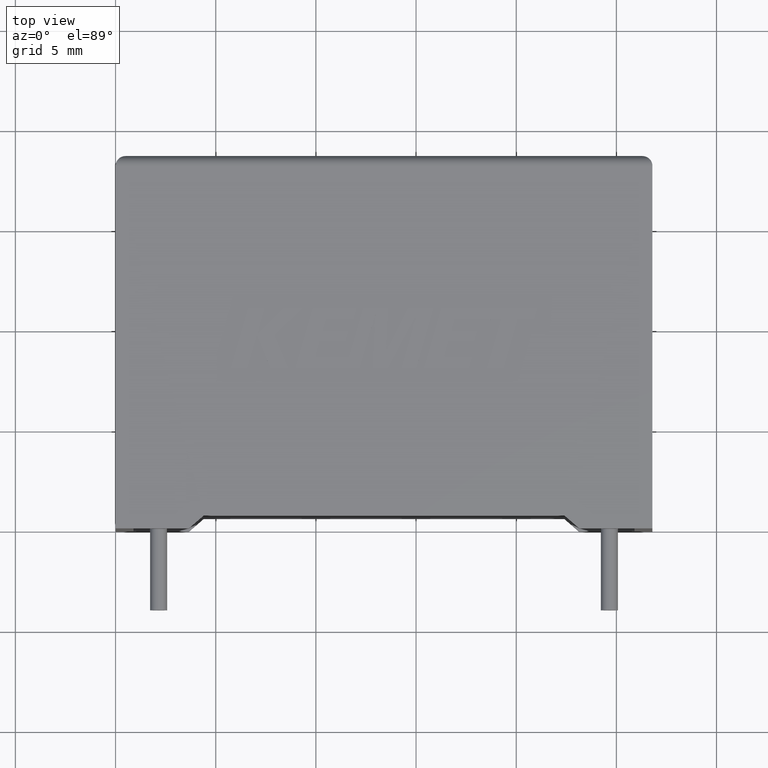
[diagram: clean part render]
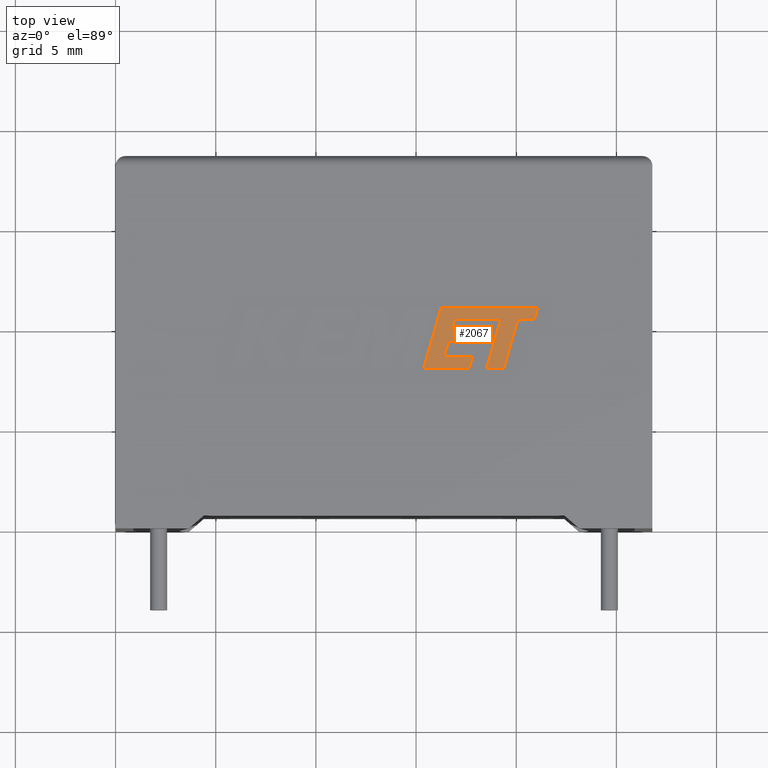
[diagram: same view with one face highlighted and labeled with its STEP entity id]
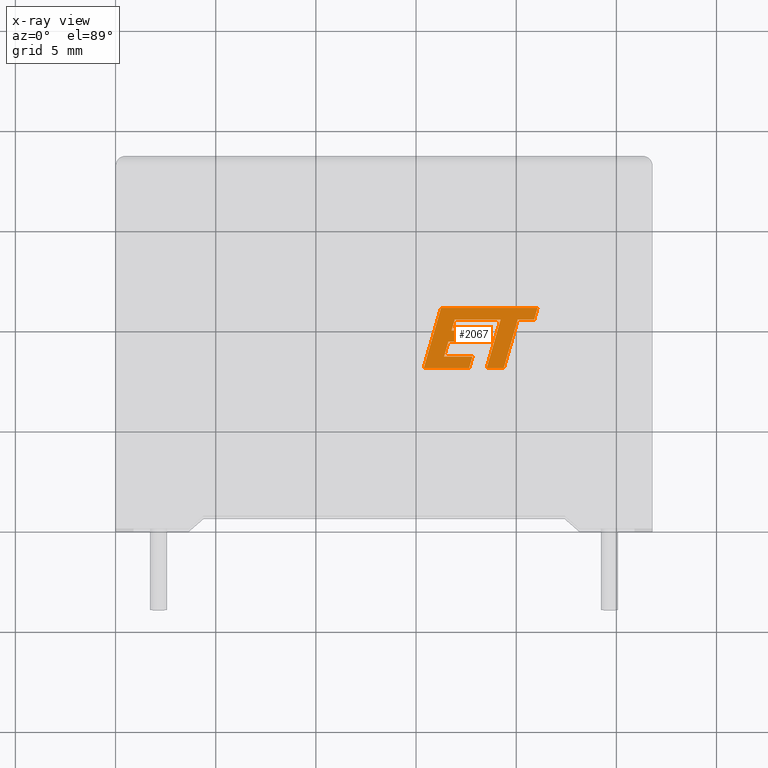
[diagram: x-ray of the same camera — body ghosted, the highlighted face saturated]
A machine part, top view. The second image highlights one B-rep face of the part: STEP entity #2067.
The next image is the same camera in x-ray: the body ghosted, the highlighted face saturated — about 0% of this face is hidden behind the body in this view.
In plain terms, the highlighted planar face has unit normal (0, 0, 1).
Its self-contained STEP definition (entity closure, byte-faithful):
#2 = DIRECTION ( 'NONE',  ( 0.9999999968487351953, -7.938847109813992875E-05, 0.000000000000000000 ) ) ;
#6 = DIRECTION ( 'NONE',  ( 0.9999960426590095430, -0.002813301676021314271, 0.000000000000000000 ) ) ;
#26 = VECTOR ( 'NONE', #2262, 1000.000000000000114 ) ;
#49 = EDGE_CURVE ( 'NONE', #2011, #2977, #1680, .T. ) ;
#57 = DIRECTION ( 'NONE',  ( 0.2793947940814923148, 0.9601763114346033579, 0.000000000000000000 ) ) ;
#75 = VECTOR ( 'NONE', #1067, 1000.000000000000114 ) ;
#94 = CARTESIAN_POINT ( 'NONE',  ( 21.06565576242807580, 11.00540514629475375, 10.20499999999999829 ) ) ;
#123 = LINE ( 'NONE', #2137, #2594 ) ;
#157 = ORIENTED_EDGE ( 'NONE', *, *, #631, .T. ) ;
#161 = CARTESIAN_POINT ( 'NONE',  ( 16.24677359728082493, 11.00540514629475375, 10.20499999999999829 ) ) ;
#168 = CARTESIAN_POINT ( 'NONE',  ( 15.38334338224329656, 8.003579999999905326, 10.20499999999999829 ) ) ;
#172 = ORIENTED_EDGE ( 'NONE', *, *, #639, .T. ) ;
#199 = ORIENTED_EDGE ( 'NONE', *, *, #337, .T. ) ;
#247 = CARTESIAN_POINT ( 'NONE',  ( 16.93410048055206119, 10.43392274208706993, 10.20499999999999829 ) ) ;
#248 = EDGE_CURVE ( 'NONE', #2909, #799, #1218, .T. ) ;
#256 = LINE ( 'NONE', #721, #2453 ) ;
#258 = VECTOR ( 'NONE', #2031, 1000.000000000000000 ) ;
#294 = CARTESIAN_POINT ( 'NONE',  ( 16.61331020747001475, 9.320749644009048041, 10.20499999999999829 ) ) ;
#337 = EDGE_CURVE ( 'NONE', #527, #2011, #1014, .T. ) ;
#361 = DIRECTION ( 'NONE',  ( 1.000000000000000000, 0.000000000000000000, 0.000000000000000000 ) ) ;
#374 = CARTESIAN_POINT ( 'NONE',  ( 15.38334338224329656, 8.003579999999905326, 10.20499999999999829 ) ) ;
#390 = VERTEX_POINT ( 'NONE', #659 ) ;
#425 = EDGE_CURVE ( 'NONE', #1996, #2735, #2563, .T. ) ;
#491 = LINE ( 'NONE', #2635, #1302 ) ;
#514 = CARTESIAN_POINT ( 'NONE',  ( 18.05985108378877158, 9.875583739499239400, 10.20499999999999829 ) ) ;
#515 = EDGE_CURVE ( 'NONE', #390, #2980, #2547, .T. ) ;
#527 = VERTEX_POINT ( 'NONE', #2163 ) ;
#543 = ORIENTED_EDGE ( 'NONE', *, *, #767, .T. ) ;
#573 = VERTEX_POINT ( 'NONE', #1399 ) ;
#589 = EDGE_CURVE ( 'NONE', #2977, #1996, #491, .T. ) ;
#595 = DIRECTION ( 'NONE',  ( -1.000000000000000000, 0.000000000000000000, 0.000000000000000000 ) ) ;
#603 = CARTESIAN_POINT ( 'NONE',  ( -0.3258222201975293775, -1.712352143479580979, 10.20499999999999474 ) ) ;
#631 = EDGE_CURVE ( 'NONE', #573, #527, #1745, .T. ) ;
#639 = EDGE_CURVE ( 'NONE', #1423, #573, #2499, .T. ) ;
#652 = VECTOR ( 'NONE', #1891, 1000.000000000000000 ) ;
#659 = CARTESIAN_POINT ( 'NONE',  ( 20.07719893950525147, 10.42580851705221434, 10.20499999999999829 ) ) ;
#709 = DIRECTION ( 'NONE',  ( 0.2746918797667269874, 0.9615323037684286867, 0.000000000000000000 ) ) ;
#719 = CARTESIAN_POINT ( 'NONE',  ( 19.38098200300940732, 8.003579999999908878, 10.20499999999999829 ) ) ;
#721 = CARTESIAN_POINT ( 'NONE',  ( 19.38098200300940732, 8.003579999999908878, 10.20499999999999829 ) ) ;
#764 = CARTESIAN_POINT ( 'NONE',  ( 17.65131035018722372, 8.003579999999908878, 10.20499999999999829 ) ) ;
#767 = EDGE_CURVE ( 'NONE', #2116, #845, #1137, .T. ) ;
#799 = VERTEX_POINT ( 'NONE', #1123 ) ;
#801 = VECTOR ( 'NONE', #595, 1000.000000000000000 ) ;
#845 = VERTEX_POINT ( 'NONE', #719 ) ;
#849 = EDGE_CURVE ( 'NONE', #1923, #1641, #2159, .T. ) ;
#872 = CARTESIAN_POINT ( 'NONE',  ( 19.22229368320639864, 10.42580851705967859, 10.20499999999999829 ) ) ;
#998 = ORIENTED_EDGE ( 'NONE', *, *, #1836, .T. ) ;
#1014 = LINE ( 'NONE', #1972, #1389 ) ;
#1015 = ORIENTED_EDGE ( 'NONE', *, *, #49, .T. ) ;
#1020 = ORIENTED_EDGE ( 'NONE', *, *, #2069, .T. ) ;
#1025 = ORIENTED_EDGE ( 'NONE', *, *, #1723, .T. ) ;
#1067 = DIRECTION ( 'NONE',  ( 0.2729786930694848013, 0.9620200793798827643, 0.000000000000000000 ) ) ;
#1082 = FACE_OUTER_BOUND ( 'NONE', #1236, .T. ) ;
#1120 = ORIENTED_EDGE ( 'NONE', *, *, #2525, .T. ) ;
#1123 = CARTESIAN_POINT ( 'NONE',  ( 18.30970349758751325, 10.43005274049878928, 10.20499999999999829 ) ) ;
#1137 = LINE ( 'NONE', #2542, #2218 ) ;
#1156 = ORIENTED_EDGE ( 'NONE', *, *, #1518, .T. ) ;
#1175 = CARTESIAN_POINT ( 'NONE',  ( 16.61331020747001475, 9.320749644009048041, 10.20499999999999829 ) ) ;
#1218 = LINE ( 'NONE', #247, #2749 ) ;
#1236 = EDGE_LOOP ( 'NONE', ( #2923, #998, #1156, #543, #1537, #2921, #2115, #1020, #2075, #1120, #172, #157, #199, #1015, #2149, #2561, #1025 ) ) ;
#1292 = CARTESIAN_POINT ( 'NONE',  ( 16.77163343278391139, 9.875583739499239400, 10.20499999999999829 ) ) ;
#1302 = VECTOR ( 'NONE', #709, 1000.000000000000114 ) ;
#1346 = VECTOR ( 'NONE', #2, 1000.000000000000114 ) ;
#1366 = CARTESIAN_POINT ( 'NONE',  ( 18.05985108378877158, 9.875583739499239400, 10.20499999999999829 ) ) ;
#1367 = LINE ( 'NONE', #872, #2539 ) ;
#1389 = VECTOR ( 'NONE', #2970, 1000.000000000000114 ) ;
#1399 = CARTESIAN_POINT ( 'NONE',  ( 17.81339404874116639, 8.574788583335605452, 10.20499999999999829 ) ) ;
#1419 = CARTESIAN_POINT ( 'NONE',  ( 20.07719893950525147, 10.42580851705221434, 10.20499999999999829 ) ) ;
#1423 = VERTEX_POINT ( 'NONE', #1602 ) ;
#1491 = CARTESIAN_POINT ( 'NONE',  ( 17.90134531123016259, 9.320749644009048041, 10.20499999999999829 ) ) ;
#1518 = EDGE_CURVE ( 'NONE', #2672, #2116, #1367, .T. ) ;
#1537 = ORIENTED_EDGE ( 'NONE', *, *, #2613, .T. ) ;
#1602 = CARTESIAN_POINT ( 'NONE',  ( 17.65131035018722372, 8.003579999999908878, 10.20499999999999829 ) ) ;
#1628 = DIRECTION ( 'NONE',  ( -0.2764273280489764062, -0.9610348236706636182, 0.000000000000000000 ) ) ;
#1641 = VERTEX_POINT ( 'NONE', #374 ) ;
#1651 = CARTESIAN_POINT ( 'NONE',  ( 16.24677359728082493, 11.00540514629475375, 10.20499999999999829 ) ) ;
#1680 = LINE ( 'NONE', #1175, #652 ) ;
#1723 = EDGE_CURVE ( 'NONE', #2735, #2909, #123, .T. ) ;
#1745 = LINE ( 'NONE', #2902, #801 ) ;
#1755 = CARTESIAN_POINT ( 'NONE',  ( 18.52587594473993349, 8.003579999999908878, 10.20499999999999829 ) ) ;
#1836 = EDGE_CURVE ( 'NONE', #799, #2672, #3031, .T. ) ;
#1850 = VECTOR ( 'NONE', #2562, 1000.000000000000000 ) ;
#1891 = DIRECTION ( 'NONE',  ( 1.000000000000000000, 1.002616505299178603E-15, 0.000000000000000000 ) ) ;
#1923 = VERTEX_POINT ( 'NONE', #161 ) ;
#1937 = DIRECTION ( 'NONE',  ( 0.2762437428917223770, 0.9610876102172850599, 0.000000000000000000 ) ) ;
#1972 = CARTESIAN_POINT ( 'NONE',  ( 16.40035059182244126, 8.574788583335605452, 10.20499999999999829 ) ) ;
#1996 = VERTEX_POINT ( 'NONE', #514 ) ;
#2011 = VERTEX_POINT ( 'NONE', #294 ) ;
#2031 = DIRECTION ( 'NONE',  ( -1.000000000000000000, 0.000000000000000000, 0.000000000000000000 ) ) ;
#2041 = PLANE ( 'NONE',  #2343 ) ;
#2066 = DIRECTION ( 'NONE',  ( 0.9999891854650020395, -0.004650693823678666086, 0.000000000000000000 ) ) ;
#2067 = ADVANCED_FACE ( 'NONE', ( #1082 ), #2041, .T. ) ;
#2069 = EDGE_CURVE ( 'NONE', #2281, #1923, #2216, .T. ) ;
#2075 = ORIENTED_EDGE ( 'NONE', *, *, #849, .T. ) ;
#2081 = DIRECTION ( 'NONE',  ( 1.000000000000000000, 0.000000000000000000, 0.000000000000000000 ) ) ;
#2107 = VECTOR ( 'NONE', #3051, 1000.000000000000000 ) ;
#2115 = ORIENTED_EDGE ( 'NONE', *, *, #2905, .T. ) ;
#2116 = VERTEX_POINT ( 'NONE', #1755 ) ;
#2137 = CARTESIAN_POINT ( 'NONE',  ( 16.77163343278391139, 9.875583739499239400, 10.20499999999999829 ) ) ;
#2149 = ORIENTED_EDGE ( 'NONE', *, *, #589, .T. ) ;
#2151 = VECTOR ( 'NONE', #2066, 1000.000000000000114 ) ;
#2159 = LINE ( 'NONE', #1651, #3007 ) ;
#2163 = CARTESIAN_POINT ( 'NONE',  ( 16.40035059182244126, 8.574788583335605452, 10.20499999999999829 ) ) ;
#2216 = LINE ( 'NONE', #94, #258 ) ;
#2218 = VECTOR ( 'NONE', #2081, 1000.000000000000000 ) ;
#2228 = DIRECTION ( 'NONE',  ( 0.000000000000000000, 0.000000000000000000, 1.000000000000000000 ) ) ;
#2239 = CARTESIAN_POINT ( 'NONE',  ( 20.89907096225862304, 10.42574326988868627, 10.20499999999999829 ) ) ;
#2262 = DIRECTION ( 'NONE',  ( 0.2762033010290175783, 0.9610992334304890861, 0.000000000000000000 ) ) ;
#2281 = VERTEX_POINT ( 'NONE', #2627 ) ;
#2343 = AXIS2_PLACEMENT_3D ( 'NONE', #603, #2228, #361 ) ;
#2430 = CARTESIAN_POINT ( 'NONE',  ( 19.22229368320639864, 10.42580851705967859, 10.20499999999999829 ) ) ;
#2453 = VECTOR ( 'NONE', #1937, 1000.000000000000000 ) ;
#2499 = LINE ( 'NONE', #764, #75 ) ;
#2525 = EDGE_CURVE ( 'NONE', #1641, #1423, #3002, .T. ) ;
#2539 = VECTOR ( 'NONE', #2829, 1000.000000000000114 ) ;
#2542 = CARTESIAN_POINT ( 'NONE',  ( 18.52587594473993349, 8.003579999999908878, 10.20499999999999829 ) ) ;
#2547 = LINE ( 'NONE', #1419, #1346 ) ;
#2561 = ORIENTED_EDGE ( 'NONE', *, *, #425, .T. ) ;
#2562 = DIRECTION ( 'NONE',  ( 1.000000000000000000, 5.694109626320595965E-16, 0.000000000000000000 ) ) ;
#2563 = LINE ( 'NONE', #1366, #2107 ) ;
#2594 = VECTOR ( 'NONE', #57, 1000.000000000000227 ) ;
#2613 = EDGE_CURVE ( 'NONE', #845, #390, #256, .T. ) ;
#2627 = CARTESIAN_POINT ( 'NONE',  ( 21.06565576242807580, 11.00540514629475375, 10.20499999999999829 ) ) ;
#2635 = CARTESIAN_POINT ( 'NONE',  ( 17.90134531123016259, 9.320749644009048041, 10.20499999999999829 ) ) ;
#2672 = VERTEX_POINT ( 'NONE', #2430 ) ;
#2724 = CARTESIAN_POINT ( 'NONE',  ( 20.89907096225862304, 10.42574326988868627, 10.20499999999999829 ) ) ;
#2735 = VERTEX_POINT ( 'NONE', #1292 ) ;
#2749 = VECTOR ( 'NONE', #6, 1000.000000000000114 ) ;
#2829 = DIRECTION ( 'NONE',  ( -0.2763173343569615970, -0.9610664548999008350, 0.000000000000000000 ) ) ;
#2902 = CARTESIAN_POINT ( 'NONE',  ( 17.81339404874116639, 8.574788583335605452, 10.20499999999999829 ) ) ;
#2905 = EDGE_CURVE ( 'NONE', #2980, #2281, #2945, .T. ) ;
#2909 = VERTEX_POINT ( 'NONE', #2924 ) ;
#2921 = ORIENTED_EDGE ( 'NONE', *, *, #515, .T. ) ;
#2923 = ORIENTED_EDGE ( 'NONE', *, *, #248, .T. ) ;
#2924 = CARTESIAN_POINT ( 'NONE',  ( 16.93410048055206119, 10.43392274208706993, 10.20499999999999829 ) ) ;
#2945 = LINE ( 'NONE', #2724, #26 ) ;
#2970 = DIRECTION ( 'NONE',  ( 0.2745159998572630489, 0.9615825319869153454, 0.000000000000000000 ) ) ;
#2977 = VERTEX_POINT ( 'NONE', #1491 ) ;
#2980 = VERTEX_POINT ( 'NONE', #2239 ) ;
#3002 = LINE ( 'NONE', #168, #1850 ) ;
#3007 = VECTOR ( 'NONE', #1628, 1000.000000000000114 ) ;
#3031 = LINE ( 'NONE', #3057, #2151 ) ;
#3051 = DIRECTION ( 'NONE',  ( -1.000000000000000000, 0.000000000000000000, 0.000000000000000000 ) ) ;
#3057 = CARTESIAN_POINT ( 'NONE',  ( 18.30970349758751325, 10.43005274049878928, 10.20499999999999829 ) ) ;